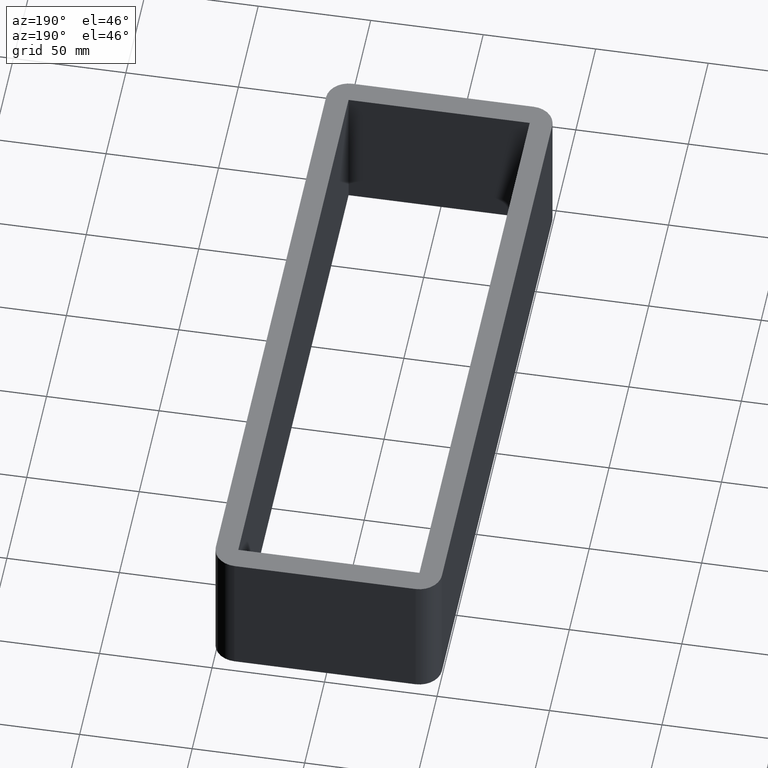
[diagram: clean part render]
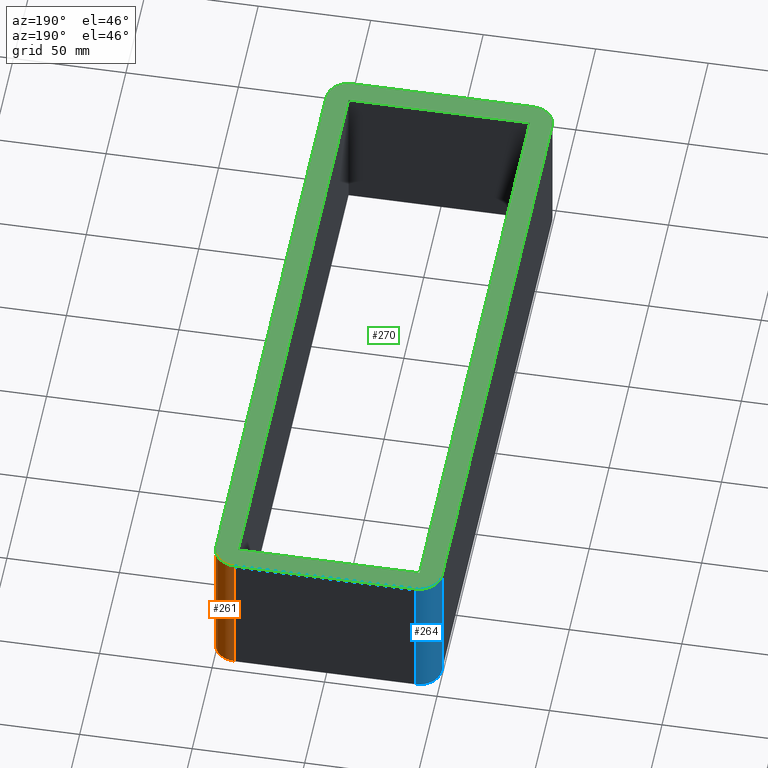
[diagram: same view with three faces highlighted in distinct colors, each labeled with its STEP entity id]
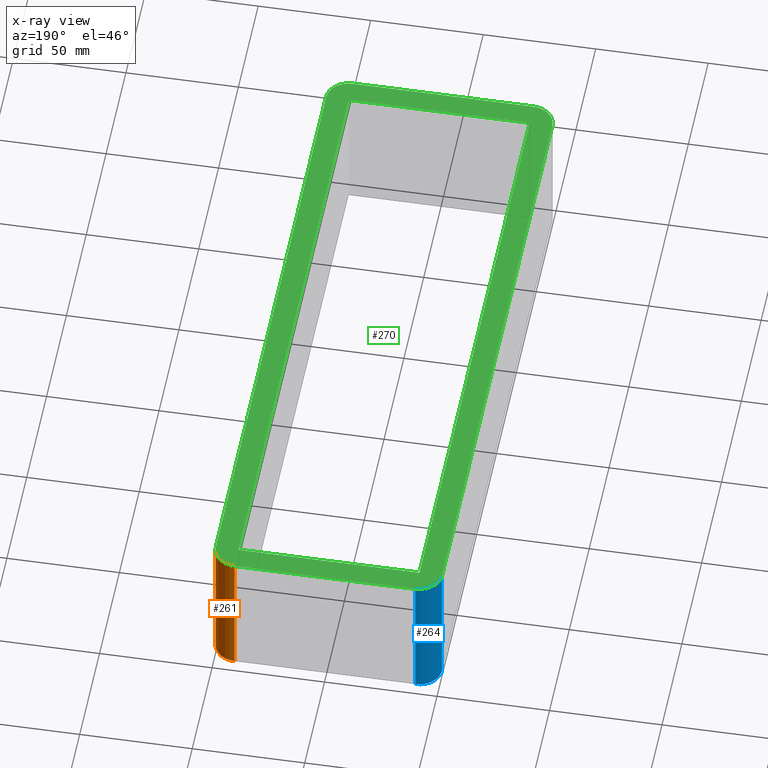
[diagram: x-ray of the same camera — body ghosted, the three highlighted faces saturated]
A machine part, auxiliary view with three faces highlighted in distinct colors.
The next image is the same camera in x-ray (body ghosted, the three faces saturated) — at least one of them is partly hidden behind the body in this view.
Their STEP definitions:

[orange] entity #261 — the highlighted cylindrical surface (edge-blend (fillet) strip) has radius 10 mm, axis along (0, 0, -1).
#17=CIRCLE('',#296,10.);
#18=CIRCLE('',#297,10.);
#25=CYLINDRICAL_SURFACE('',#295,10.);
#33=FACE_OUTER_BOUND('',#47,.T.);
#47=EDGE_LOOP('',(#191,#192,#193,#194));
#71=LINE('',#417,#99);
#72=LINE('',#420,#100);
#99=VECTOR('',#339,10.);
#100=VECTOR('',#342,10.);
#123=VERTEX_POINT('',#413);
#124=VERTEX_POINT('',#414);
#125=VERTEX_POINT('',#416);
#126=VERTEX_POINT('',#418);
#151=EDGE_CURVE('',#123,#124,#17,.T.);
#152=EDGE_CURVE('',#124,#125,#71,.T.);
#153=EDGE_CURVE('',#125,#126,#18,.T.);
#154=EDGE_CURVE('',#126,#123,#72,.T.);
#191=ORIENTED_EDGE('',*,*,#151,.T.);
#192=ORIENTED_EDGE('',*,*,#152,.T.);
#193=ORIENTED_EDGE('',*,*,#153,.T.);
#194=ORIENTED_EDGE('',*,*,#154,.T.);
#261=ADVANCED_FACE('',(#33),#25,.T.);
#295=AXIS2_PLACEMENT_3D('',#412,#335,#336);
#296=AXIS2_PLACEMENT_3D('',#415,#337,#338);
#297=AXIS2_PLACEMENT_3D('',#419,#340,#341);
#335=DIRECTION('center_axis',(0.,0.,-1.));
#336=DIRECTION('ref_axis',(0.707106781186547,0.707106781186547,0.));
#337=DIRECTION('center_axis',(0.,0.,1.));
#338=DIRECTION('ref_axis',(0.707106781186547,0.707106781186547,0.));
#339=DIRECTION('',(0.,0.,1.));
#340=DIRECTION('center_axis',(0.,0.,-1.));
#341=DIRECTION('ref_axis',(0.707106781186547,0.707106781186547,0.));
#342=DIRECTION('',(0.,0.,-1.));
#412=CARTESIAN_POINT('Origin',(40.2499999999999,139.,0.));
#413=CARTESIAN_POINT('',(50.2499999999999,139.,-60.));
#414=CARTESIAN_POINT('',(40.2499999999999,149.,-60.));
#415=CARTESIAN_POINT('Origin',(40.2499999999999,139.,-60.));
#416=CARTESIAN_POINT('',(40.2499999999999,149.,0.));
#417=CARTESIAN_POINT('',(40.2499999999999,149.,0.));
#418=CARTESIAN_POINT('',(50.2499999999999,139.,0.));
#419=CARTESIAN_POINT('Origin',(40.2499999999999,139.,0.));
#420=CARTESIAN_POINT('',(50.2499999999999,139.,0.));

[blue] entity #264 — the highlighted cylindrical surface (edge-blend (fillet) strip) has radius 10 mm, axis along (0, 0, -1).
#21=CIRCLE('',#302,10.);
#22=CIRCLE('',#304,10.);
#26=CYLINDRICAL_SURFACE('',#303,10.);
#36=FACE_OUTER_BOUND('',#51,.T.);
#51=EDGE_LOOP('',(#211,#212,#213,#214));
#74=LINE('',#425,#102);
#79=LINE('',#441,#107);
#102=VECTOR('',#346,10.);
#107=VECTOR('',#361,10.);
#127=VERTEX_POINT('',#422);
#128=VERTEX_POINT('',#424);
#133=VERTEX_POINT('',#436);
#134=VERTEX_POINT('',#440);
#156=EDGE_CURVE('',#128,#127,#74,.T.);
#163=EDGE_CURVE('',#127,#133,#21,.T.);
#164=EDGE_CURVE('',#133,#134,#79,.T.);
#165=EDGE_CURVE('',#134,#128,#22,.T.);
#211=ORIENTED_EDGE('',*,*,#163,.T.);
#212=ORIENTED_EDGE('',*,*,#164,.T.);
#213=ORIENTED_EDGE('',*,*,#165,.T.);
#214=ORIENTED_EDGE('',*,*,#156,.T.);
#264=ADVANCED_FACE('',(#36),#26,.T.);
#302=AXIS2_PLACEMENT_3D('',#438,#357,#358);
#303=AXIS2_PLACEMENT_3D('',#439,#359,#360);
#304=AXIS2_PLACEMENT_3D('',#442,#362,#363);
#346=DIRECTION('',(0.,0.,-1.));
#357=DIRECTION('center_axis',(0.,0.,1.));
#358=DIRECTION('ref_axis',(-0.707106781186547,0.707106781186547,0.));
#359=DIRECTION('center_axis',(0.,0.,-1.));
#360=DIRECTION('ref_axis',(-0.707106781186547,0.707106781186547,0.));
#361=DIRECTION('',(0.,0.,1.));
#362=DIRECTION('center_axis',(0.,0.,-1.));
#363=DIRECTION('ref_axis',(-0.707106781186547,0.707106781186547,0.));
#422=CARTESIAN_POINT('',(-40.2499999999999,149.,-60.));
#424=CARTESIAN_POINT('',(-40.2499999999999,149.,0.));
#425=CARTESIAN_POINT('',(-40.2499999999999,149.,0.));
#436=CARTESIAN_POINT('',(-50.2499999999999,139.,-60.));
#438=CARTESIAN_POINT('Origin',(-40.2499999999999,139.,-60.));
#439=CARTESIAN_POINT('Origin',(-40.2499999999999,139.,0.));
#440=CARTESIAN_POINT('',(-50.2499999999999,139.,0.));
#441=CARTESIAN_POINT('',(-50.2499999999999,139.,0.));
#442=CARTESIAN_POINT('Origin',(-40.2499999999999,139.,0.));

[green] entity #270 — the highlighted planar face has unit normal (0, 0, 1).
#16=FACE_BOUND('',#58,.T.);
#18=CIRCLE('',#297,10.);
#22=CIRCLE('',#304,10.);
#23=CIRCLE('',#307,10.);
#24=CIRCLE('',#310,10.);
#42=FACE_OUTER_BOUND('',#57,.T.);
#57=EDGE_LOOP('',(#235,#236,#237,#238,#239,#240,#241,#242));
#58=EDGE_LOOP('',(#243,#244,#245,#246));
#61=LINE('',#395,#89);
#64=LINE('',#401,#92);
#67=LINE('',#407,#95);
#70=LINE('',#411,#98);
#75=LINE('',#426,#103);
#81=LINE('',#446,#109);
#84=LINE('',#454,#112);
#86=LINE('',#460,#114);
#89=VECTOR('',#319,10.);
#92=VECTOR('',#324,10.);
#95=VECTOR('',#329,10.);
#98=VECTOR('',#334,10.);
#103=VECTOR('',#347,10.);
#109=VECTOR('',#367,10.);
#112=VECTOR('',#376,10.);
#114=VECTOR('',#384,10.);
#117=VERTEX_POINT('',#392);
#118=VERTEX_POINT('',#394);
#120=VERTEX_POINT('',#400);
#122=VERTEX_POINT('',#406);
#125=VERTEX_POINT('',#416);
#126=VERTEX_POINT('',#418);
#128=VERTEX_POINT('',#424);
#134=VERTEX_POINT('',#440);
#135=VERTEX_POINT('',#444);
#136=VERTEX_POINT('',#448);
#137=VERTEX_POINT('',#452);
#138=VERTEX_POINT('',#456);
#141=EDGE_CURVE('',#118,#117,#61,.T.);
#144=EDGE_CURVE('',#120,#118,#64,.T.);
#147=EDGE_CURVE('',#122,#120,#67,.T.);
#150=EDGE_CURVE('',#117,#122,#70,.T.);
#153=EDGE_CURVE('',#125,#126,#18,.T.);
#157=EDGE_CURVE('',#125,#128,#75,.T.);
#165=EDGE_CURVE('',#134,#128,#22,.T.);
#167=EDGE_CURVE('',#134,#135,#81,.T.);
#169=EDGE_CURVE('',#136,#135,#23,.T.);
#171=EDGE_CURVE('',#136,#137,#84,.T.);
#173=EDGE_CURVE('',#138,#137,#24,.T.);
#174=EDGE_CURVE('',#138,#126,#86,.T.);
#235=ORIENTED_EDGE('',*,*,#153,.F.);
#236=ORIENTED_EDGE('',*,*,#157,.T.);
#237=ORIENTED_EDGE('',*,*,#165,.F.);
#238=ORIENTED_EDGE('',*,*,#167,.T.);
#239=ORIENTED_EDGE('',*,*,#169,.F.);
#240=ORIENTED_EDGE('',*,*,#171,.T.);
#241=ORIENTED_EDGE('',*,*,#173,.F.);
#242=ORIENTED_EDGE('',*,*,#174,.T.);
#243=ORIENTED_EDGE('',*,*,#147,.T.);
#244=ORIENTED_EDGE('',*,*,#144,.T.);
#245=ORIENTED_EDGE('',*,*,#141,.T.);
#246=ORIENTED_EDGE('',*,*,#150,.T.);
#256=PLANE('',#312);
#270=ADVANCED_FACE('',(#42,#16),#256,.T.);
#297=AXIS2_PLACEMENT_3D('',#419,#340,#341);
#304=AXIS2_PLACEMENT_3D('',#442,#362,#363);
#307=AXIS2_PLACEMENT_3D('',#450,#371,#372);
#310=AXIS2_PLACEMENT_3D('',#458,#380,#381);
#312=AXIS2_PLACEMENT_3D('',#461,#385,#386);
#319=DIRECTION('',(6.38977280359802E-17,-1.,0.));
#324=DIRECTION('',(1.,0.,0.));
#329=DIRECTION('',(-1.20447217347823E-14,1.,0.));
#334=DIRECTION('',(-1.,0.,0.));
#340=DIRECTION('center_axis',(0.,0.,-1.));
#341=DIRECTION('ref_axis',(0.707106781186547,0.707106781186547,0.));
#347=DIRECTION('',(-1.,0.,0.));
#362=DIRECTION('center_axis',(0.,0.,-1.));
#363=DIRECTION('ref_axis',(-0.707106781186547,0.707106781186547,0.));
#367=DIRECTION('',(0.,-1.,0.));
#371=DIRECTION('center_axis',(0.,0.,-1.));
#372=DIRECTION('ref_axis',(-0.707106781186547,-0.707106781186547,0.));
#376=DIRECTION('',(1.,0.,0.));
#380=DIRECTION('center_axis',(0.,0.,-1.));
#381=DIRECTION('ref_axis',(0.707106781186547,-0.707106781186547,0.));
#384=DIRECTION('',(0.,1.,0.));
#385=DIRECTION('center_axis',(0.,0.,1.));
#386=DIRECTION('ref_axis',(1.,0.,0.));
#392=CARTESIAN_POINT('',(40.2500000000036,-139.000000000009,0.));
#394=CARTESIAN_POINT('',(40.2500000000036,138.999999999991,0.));
#395=CARTESIAN_POINT('',(40.2500000000036,69.4999999999956,0.));
#400=CARTESIAN_POINT('',(-40.2499999999997,138.999999999991,0.));
#401=CARTESIAN_POINT('',(-20.1249999999999,138.999999999991,0.));
#406=CARTESIAN_POINT('',(-40.2499999999964,-139.000000000009,0.));
#407=CARTESIAN_POINT('',(-40.2499999999972,-69.5000000000046,0.));
#411=CARTESIAN_POINT('',(20.1250000000018,-139.000000000009,0.));
#416=CARTESIAN_POINT('',(40.2499999999999,149.,0.));
#418=CARTESIAN_POINT('',(50.2499999999999,139.,0.));
#419=CARTESIAN_POINT('Origin',(40.2499999999999,139.,0.));
#424=CARTESIAN_POINT('',(-40.2499999999999,149.,0.));
#426=CARTESIAN_POINT('',(50.2499999999999,149.,0.));
#440=CARTESIAN_POINT('',(-50.2499999999999,139.,0.));
#442=CARTESIAN_POINT('Origin',(-40.2499999999999,139.,0.));
#444=CARTESIAN_POINT('',(-50.2499999999999,-139.,0.));
#446=CARTESIAN_POINT('',(-50.2499999999999,149.,0.));
#448=CARTESIAN_POINT('',(-40.2499999999999,-149.,0.));
#450=CARTESIAN_POINT('Origin',(-40.2499999999999,-139.,0.));
#452=CARTESIAN_POINT('',(40.2499999999999,-149.,0.));
#454=CARTESIAN_POINT('',(-50.2499999999999,-149.,0.));
#456=CARTESIAN_POINT('',(50.2499999999999,-139.,0.));
#458=CARTESIAN_POINT('Origin',(40.2499999999999,-139.,0.));
#460=CARTESIAN_POINT('',(50.2499999999999,-149.,0.));
#461=CARTESIAN_POINT('Origin',(0.,2.13430277215769E-13,0.));